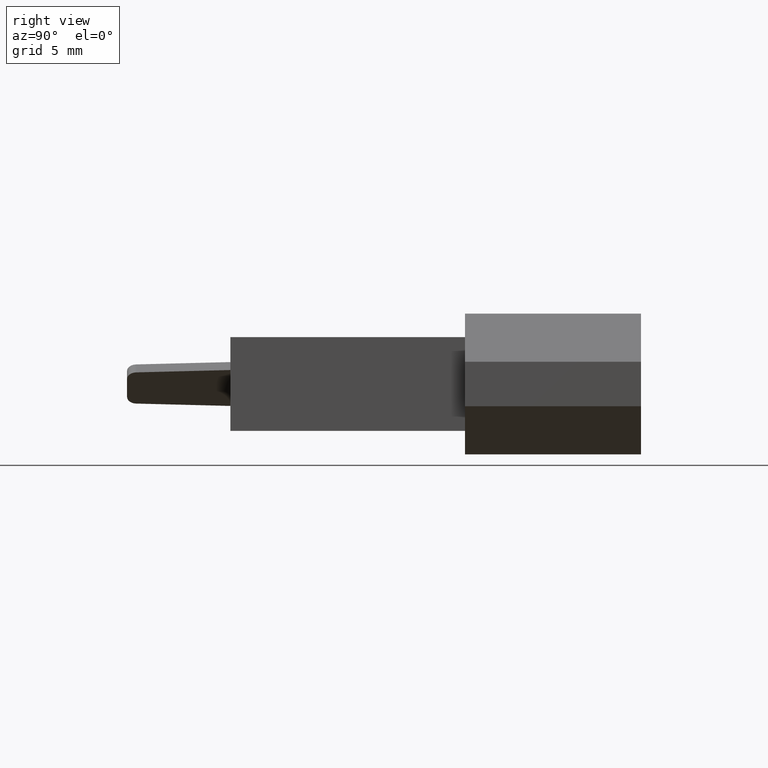
[diagram: clean part render]
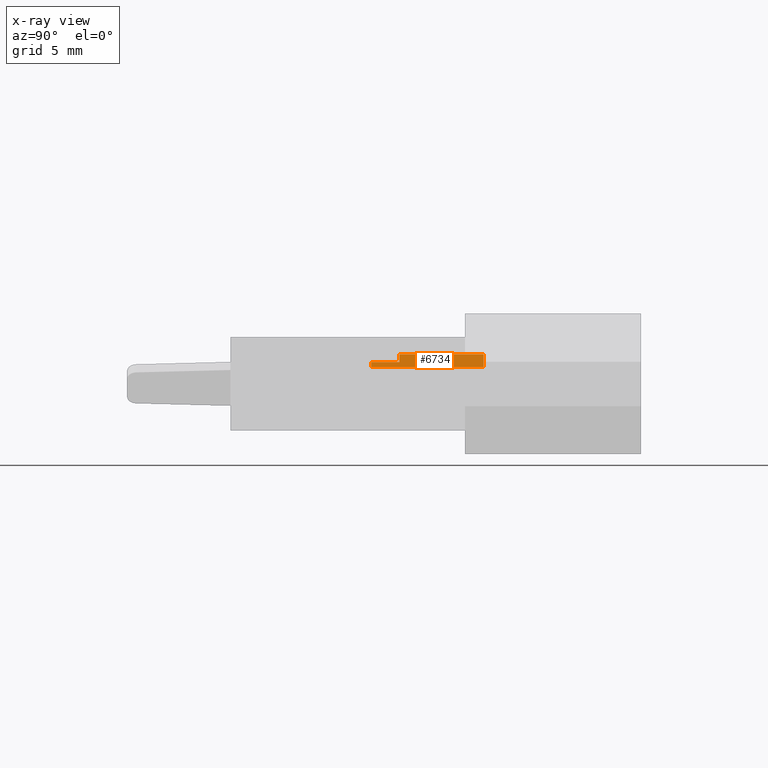
[diagram: x-ray — body ghosted, one internal face saturated and labeled with its STEP entity id]
A machine part, right view, then the same camera in x-ray: the body is ghosted and one INTERNAL B-rep face — a face not visible from any outside direction — is saturated and labeled: STEP entity #6734.
In plain terms, the highlighted planar face has unit normal (0.7071, 0, 0.7071).
Its self-contained STEP definition (entity closure, byte-faithful):
#46 = CARTESIAN_POINT ( 'NONE',  ( 19.89759758253472200, -5.086337406446097600, 1.171638274414954300 ) ) ;
#78 = VECTOR ( 'NONE', #4889, 1000.000000000000000 ) ;
#320 = FACE_OUTER_BOUND ( 'NONE', #4273, .T. ) ;
#776 = VERTEX_POINT ( 'NONE', #5269 ) ;
#934 = ORIENTED_EDGE ( 'NONE', *, *, #1475, .F. ) ;
#980 = PLANE ( 'NONE',  #8016 ) ;
#990 = VECTOR ( 'NONE', #7740, 1000.000000000000100 ) ;
#1326 = CARTESIAN_POINT ( 'NONE',  ( 19.45688015853815500, -3.556000000000000000, 1.612355698411524400 ) ) ;
#1475 = EDGE_CURVE ( 'NONE', #3100, #4525, #2126, .T. ) ;
#1925 = VECTOR ( 'NONE', #6411, 1000.000000000000000 ) ;
#2126 = B_SPLINE_CURVE_WITH_KNOTS ( 'NONE', 3,
 ( #8602, #7832, #46, #5063 ),
 .UNSPECIFIED., .F., .F.,
 ( 4, 4 ),
 ( 0.0006940124607052473200, 0.0007289083300417293100 ),
 .UNSPECIFIED. ) ;
#2172 = EDGE_CURVE ( 'NONE', #4525, #5581, #4849, .T. ) ;
#2349 = CARTESIAN_POINT ( 'NONE',  ( 19.45688015853815500, 1.015999999999999600, 1.612355698411525000 ) ) ;
#2569 = VERTEX_POINT ( 'NONE', #2349 ) ;
#2717 = ORIENTED_EDGE ( 'NONE', *, *, #4668, .F. ) ;
#2733 = EDGE_CURVE ( 'NONE', #5581, #776, #2927, .T. ) ;
#2752 = CARTESIAN_POINT ( 'NONE',  ( 19.45688015853815500, 1.015999999999999600, 1.612355698411524400 ) ) ;
#2927 = LINE ( 'NONE', #4286, #1925 ) ;
#3100 = VERTEX_POINT ( 'NONE', #8303 ) ;
#3105 = LINE ( 'NONE', #7701, #4347 ) ;
#3451 = CARTESIAN_POINT ( 'NONE',  ( 19.45688015853815500, -3.556000000000000000, 1.612355698411525000 ) ) ;
#3493 = DIRECTION ( 'NONE',  ( 0.7071067811865479100, 0.0000000000000000000, -0.7071067811865470200 ) ) ;
#3909 = DIRECTION ( 'NONE',  ( 0.7071067811865486800, 8.713498840270157000E-017, -0.7071067811865464600 ) ) ;
#4068 = CARTESIAN_POINT ( 'NONE',  ( 19.90450340712701700, -5.080000000000001000, 1.164732449822659700 ) ) ;
#4199 = CARTESIAN_POINT ( 'NONE',  ( 19.88384204896855000, -3.556000000000000000, 1.185393807981128600 ) ) ;
#4206 = ORIENTED_EDGE ( 'NONE', *, *, #2733, .F. ) ;
#4273 = EDGE_LOOP ( 'NONE', ( #7102, #4206, #5420, #934, #6037, #2717, #5423 ) ) ;
#4286 = CARTESIAN_POINT ( 'NONE',  ( 20.17121024484276100, -12.69999999999999900, 0.8980256121069167800 ) ) ;
#4347 = VECTOR ( 'NONE', #6289, 1000.000000000000000 ) ;
#4356 = VECTOR ( 'NONE', #3493, 1000.000000000000100 ) ;
#4525 = VERTEX_POINT ( 'NONE', #4068 ) ;
#4567 = LINE ( 'NONE', #3451, #78 ) ;
#4638 = EDGE_CURVE ( 'NONE', #2569, #776, #8471, .T. ) ;
#4668 = EDGE_CURVE ( 'NONE', #6639, #5091, #6243, .T. ) ;
#4849 = LINE ( 'NONE', #6618, #6735 ) ;
#4889 = DIRECTION ( 'NONE',  ( -0.0000000000000000000, 1.000000000000000000, -0.0000000000000000000 ) ) ;
#5063 = CARTESIAN_POINT ( 'NONE',  ( 19.90450340712701700, -5.080000000000001000, 1.164732449822659700 ) ) ;
#5091 = VERTEX_POINT ( 'NONE', #4199 ) ;
#5204 = EDGE_CURVE ( 'NONE', #3100, #5091, #3105, .T. ) ;
#5269 = CARTESIAN_POINT ( 'NONE',  ( 20.17121024484276100, 1.015999999999999600, 0.8980256121069167800 ) ) ;
#5335 = DIRECTION ( 'NONE',  ( 0.7071067811865464600, -0.0000000000000000000, 0.7071067811865486800 ) ) ;
#5420 = ORIENTED_EDGE ( 'NONE', *, *, #2172, .F. ) ;
#5423 = ORIENTED_EDGE ( 'NONE', *, *, #6993, .T. ) ;
#5581 = VERTEX_POINT ( 'NONE', #7019 ) ;
#6037 = ORIENTED_EDGE ( 'NONE', *, *, #5204, .T. ) ;
#6041 = DIRECTION ( 'NONE',  ( 0.7071067811865486800, 0.0000000000000000000, -0.7071067811865464600 ) ) ;
#6243 = LINE ( 'NONE', #1326, #4356 ) ;
#6289 = DIRECTION ( 'NONE',  ( 0.0000000000000000000, 1.000000000000000000, 0.0000000000000000000 ) ) ;
#6411 = DIRECTION ( 'NONE',  ( 0.0000000000000000000, 1.000000000000000000, 0.0000000000000000000 ) ) ;
#6618 = CARTESIAN_POINT ( 'NONE',  ( 19.88384204896855000, -5.080000000000001000, 1.185393807981128600 ) ) ;
#6639 = VERTEX_POINT ( 'NONE', #7240 ) ;
#6734 = ADVANCED_FACE ( 'NONE', ( #320 ), #980, .F. ) ;
#6735 = VECTOR ( 'NONE', #3909, 999.9999999999998900 ) ;
#6993 = EDGE_CURVE ( 'NONE', #6639, #2569, #4567, .T. ) ;
#7019 = CARTESIAN_POINT ( 'NONE',  ( 20.17121024484276100, -5.080000000000001000, 0.8980256121069167800 ) ) ;
#7102 = ORIENTED_EDGE ( 'NONE', *, *, #4638, .T. ) ;
#7240 = CARTESIAN_POINT ( 'NONE',  ( 19.45688015853815500, -3.556000000000000000, 1.612355698411525000 ) ) ;
#7701 = CARTESIAN_POINT ( 'NONE',  ( 19.88384204896855000, -12.69999999999999900, 1.185393807981128400 ) ) ;
#7740 = DIRECTION ( 'NONE',  ( 0.7071067811865479100, 0.0000000000000000000, -0.7071067811865470200 ) ) ;
#7832 = CARTESIAN_POINT ( 'NONE',  ( 19.89071086370125500, -5.092728139206953700, 1.178524993248421400 ) ) ;
#8016 = AXIS2_PLACEMENT_3D ( 'NONE', #8056, #5335, #6041 ) ;
#8056 = CARTESIAN_POINT ( 'NONE',  ( 19.88384204896855000, -12.69999999999999900, 1.185393807981128400 ) ) ;
#8303 = CARTESIAN_POINT ( 'NONE',  ( 19.88384204896855000, -5.099168844320193900, 1.185393807981128600 ) ) ;
#8471 = LINE ( 'NONE', #2752, #990 ) ;
#8602 = CARTESIAN_POINT ( 'NONE',  ( 19.88384204896855000, -5.099168844320193900, 1.185393807981128600 ) ) ;